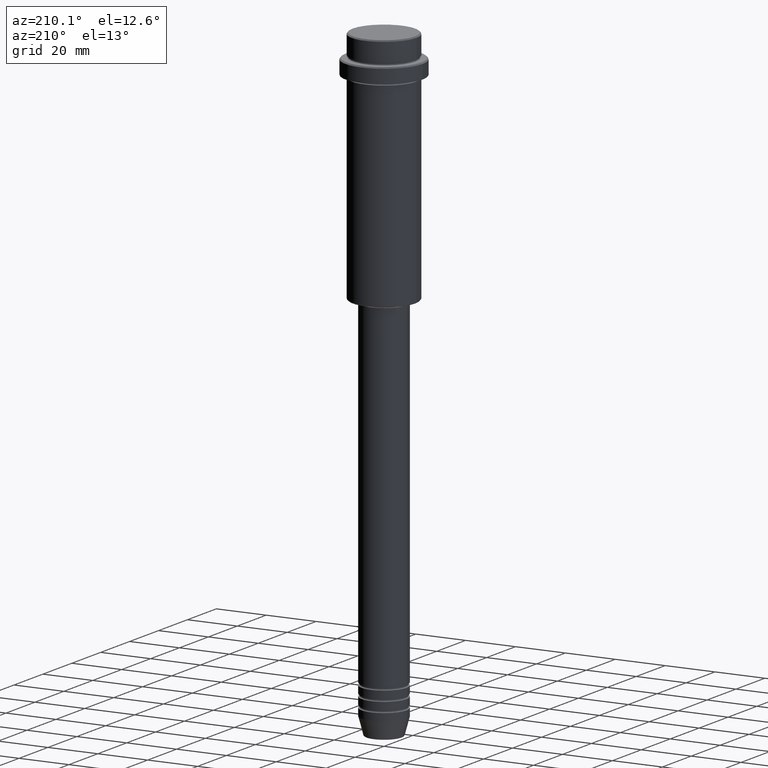
[diagram: clean part render]
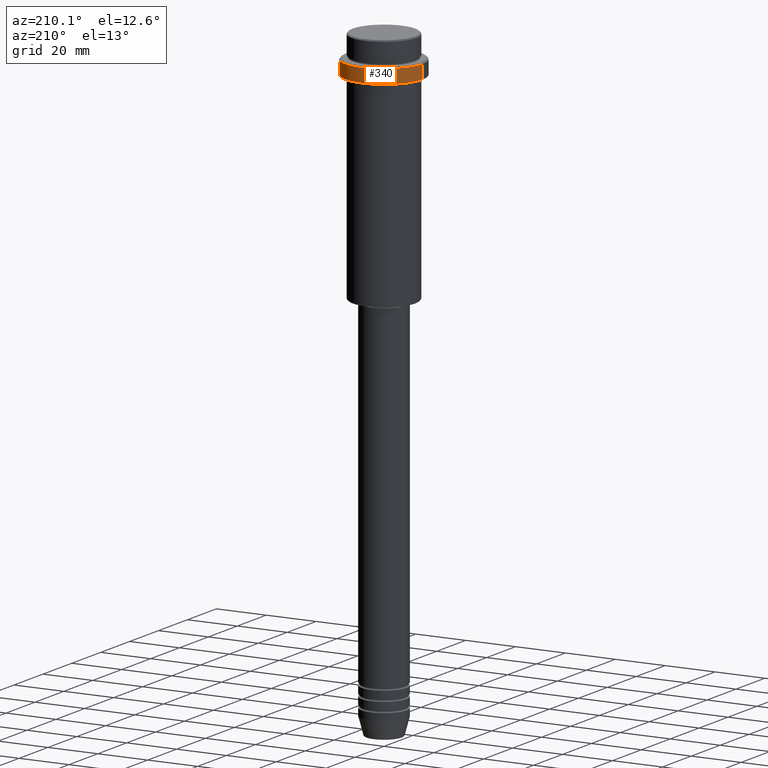
[diagram: same view with one face highlighted and labeled with its STEP entity id]
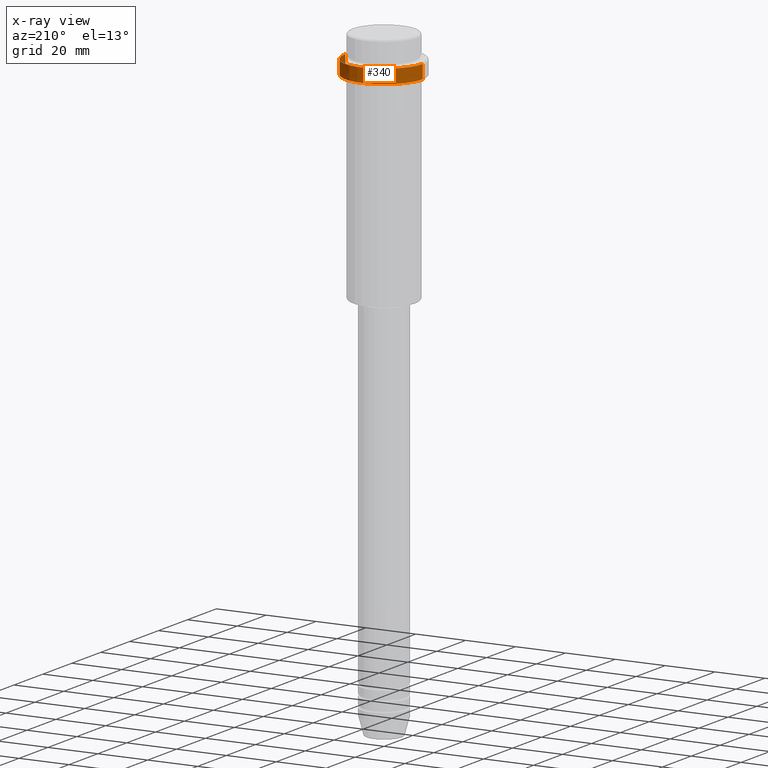
[diagram: x-ray of the same camera — body ghosted, the highlighted face saturated]
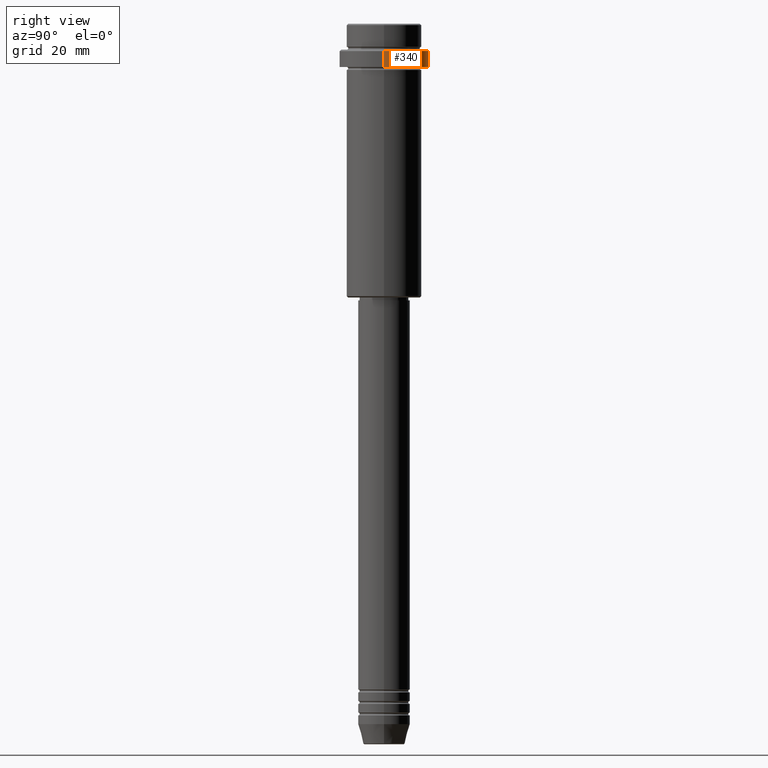
[diagram: same view with one face highlighted and labeled with its STEP entity id]
A machine part, auxiliary view. The second image highlights one B-rep face of the part: STEP entity #340.
The next image is the same camera in x-ray: the body ghosted, the highlighted face saturated — about 0% of this face is hidden behind the body in this view.
A second angle (right view) of the same face is appended — the face is thin or edge-on in the first view.
In plain terms, the highlighted cylindrical surface (partial cylindrical patch) has radius 15.5 mm, axis along (-0, -0, 1).
Its self-contained STEP definition (entity closure, byte-faithful):
#29 = EDGE_LOOP ( 'NONE', ( #500, #1153, #962, #1036 ) ) ;
#74 = EDGE_CURVE ( 'NONE', #997, #825, #168, .T. ) ;
#128 = CARTESIAN_POINT ( 'NONE',  ( 15.50000000000000000, 0.000000000000000000, -15.00000000000000178 ) ) ;
#168 = LINE ( 'NONE', #616, #846 ) ;
#174 = DIRECTION ( 'NONE',  ( 1.000000000000000000, 0.000000000000000000, 0.000000000000000000 ) ) ;
#191 = CIRCLE ( 'NONE', #399, 15.50000000000000000 ) ;
#266 = DIRECTION ( 'NONE',  ( 0.000000000000000000, 0.000000000000000000, -1.000000000000000000 ) ) ;
#285 = EDGE_CURVE ( 'NONE', #825, #755, #328, .T. ) ;
#317 = CYLINDRICAL_SURFACE ( 'NONE', #1402, 15.50000000000000000 ) ;
#328 = CIRCLE ( 'NONE', #1290, 15.50000000000000000 ) ;
#340 = ADVANCED_FACE ( 'NONE', ( #756 ), #317, .T. ) ;
#399 = AXIS2_PLACEMENT_3D ( 'NONE', #531, #423, #668 ) ;
#423 = DIRECTION ( 'NONE',  ( -0.000000000000000000, -0.000000000000000000, 1.000000000000000000 ) ) ;
#500 = ORIENTED_EDGE ( 'NONE', *, *, #1236, .T. ) ;
#531 = CARTESIAN_POINT ( 'NONE',  ( 0.000000000000000000, 0.000000000000000000, -15.00000000000000178 ) ) ;
#548 = LINE ( 'NONE', #1086, #1237 ) ;
#616 = CARTESIAN_POINT ( 'NONE',  ( -15.50000000000000000, 1.898202538678397557E-15, 0.000000000000000000 ) ) ;
#668 = DIRECTION ( 'NONE',  ( 1.000000000000000000, 0.000000000000000000, 0.000000000000000000 ) ) ;
#706 = DIRECTION ( 'NONE',  ( 1.000000000000000000, 0.000000000000000000, 0.000000000000000000 ) ) ;
#709 = DIRECTION ( 'NONE',  ( -0.000000000000000000, -0.000000000000000000, 1.000000000000000000 ) ) ;
#724 = CARTESIAN_POINT ( 'NONE',  ( 0.000000000000000000, 0.000000000000000000, 0.000000000000000000 ) ) ;
#751 = DIRECTION ( 'NONE',  ( -0.000000000000000000, -0.000000000000000000, 1.000000000000000000 ) ) ;
#755 = VERTEX_POINT ( 'NONE', #1088 ) ;
#756 = FACE_OUTER_BOUND ( 'NONE', #29, .T. ) ;
#825 = VERTEX_POINT ( 'NONE', #1317 ) ;
#846 = VECTOR ( 'NONE', #709, 1000.000000000000000 ) ;
#962 = ORIENTED_EDGE ( 'NONE', *, *, #285, .T. ) ;
#997 = VERTEX_POINT ( 'NONE', #1168 ) ;
#1036 = ORIENTED_EDGE ( 'NONE', *, *, #1090, .F. ) ;
#1086 = CARTESIAN_POINT ( 'NONE',  ( 15.50000000000000000, 0.000000000000000000, 0.000000000000000000 ) ) ;
#1088 = CARTESIAN_POINT ( 'NONE',  ( 15.50000000000000000, 0.000000000000000000, -9.499999999999957367 ) ) ;
#1090 = EDGE_CURVE ( 'NONE', #1270, #755, #548, .T. ) ;
#1153 = ORIENTED_EDGE ( 'NONE', *, *, #74, .T. ) ;
#1168 = CARTESIAN_POINT ( 'NONE',  ( -15.50000000000000000, 1.898202538678397557E-15, -15.00000000000000178 ) ) ;
#1236 = EDGE_CURVE ( 'NONE', #1270, #997, #191, .T. ) ;
#1237 = VECTOR ( 'NONE', #751, 1000.000000000000000 ) ;
#1247 = CARTESIAN_POINT ( 'NONE',  ( 0.000000000000000000, 0.000000000000000000, -9.499999999999957367 ) ) ;
#1270 = VERTEX_POINT ( 'NONE', #128 ) ;
#1290 = AXIS2_PLACEMENT_3D ( 'NONE', #1247, #266, #706 ) ;
#1317 = CARTESIAN_POINT ( 'NONE',  ( -15.50000000000000000, 1.898202538678397557E-15, -9.499999999999957367 ) ) ;
#1369 = DIRECTION ( 'NONE',  ( -0.000000000000000000, -0.000000000000000000, 1.000000000000000000 ) ) ;
#1402 = AXIS2_PLACEMENT_3D ( 'NONE', #724, #1369, #174 ) ;